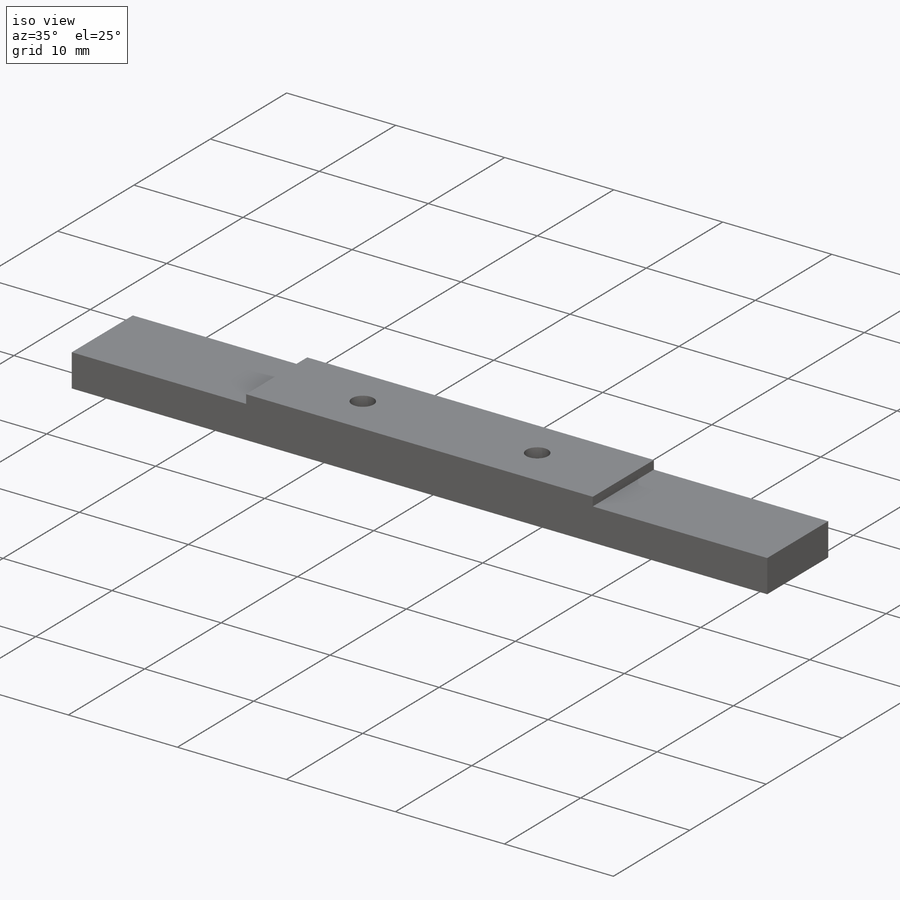
[diagram: iso view]
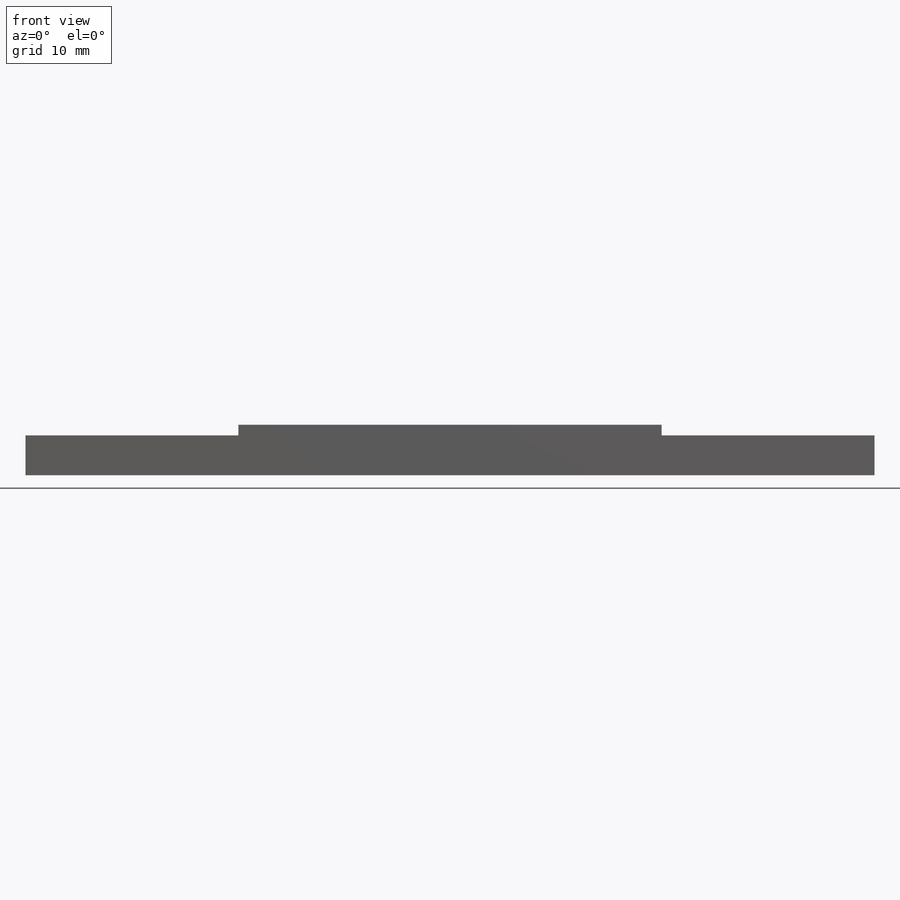
[diagram: front view]
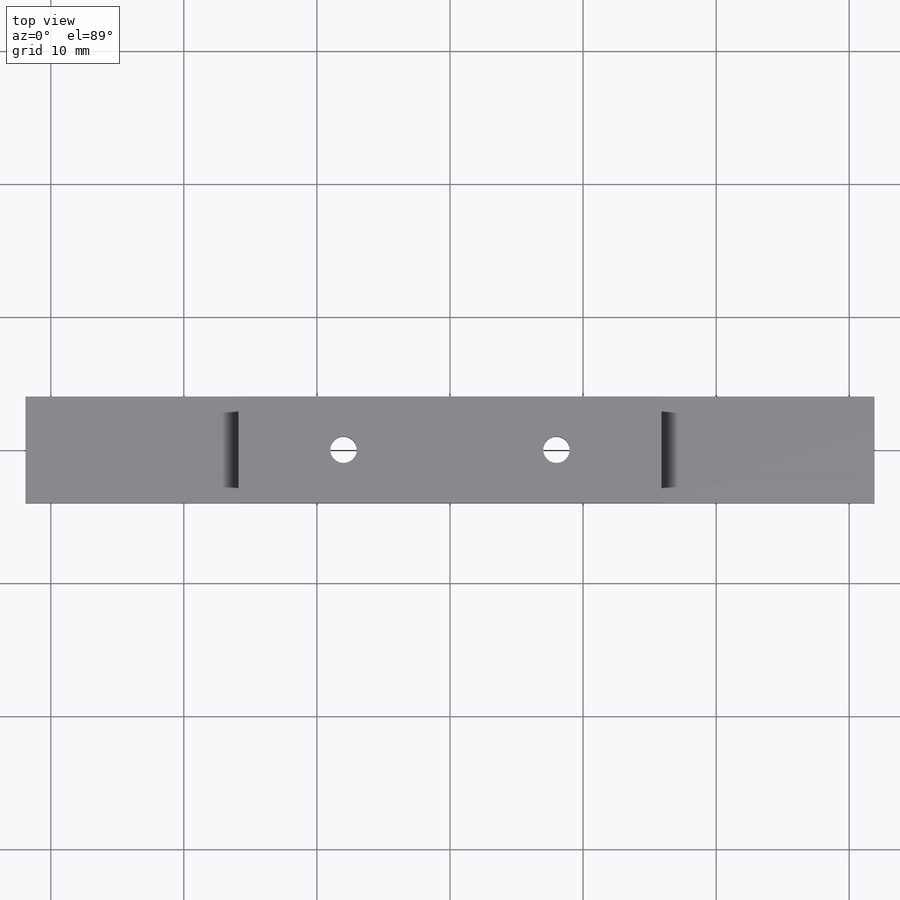
[diagram: top view]
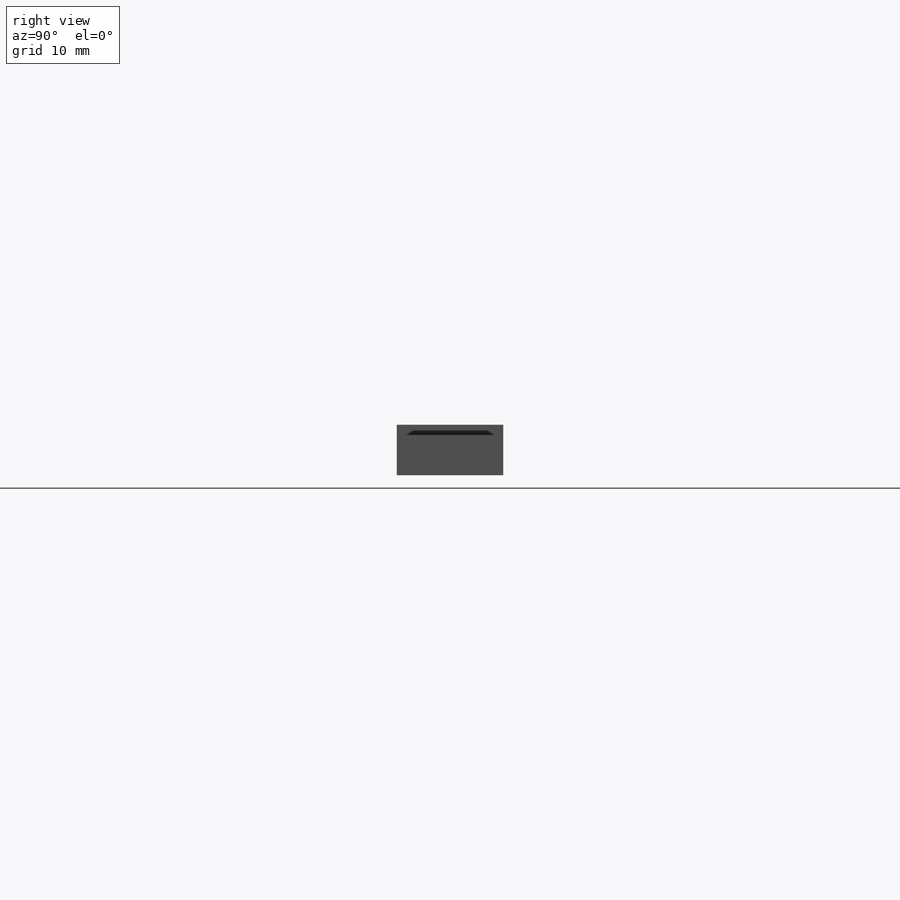
[diagram: right view]
SOLIDWORKS PART (.sldprt)
format: sldprt  version: not decoded by parser v0  size: 157,696 bytes
history: native  units: mm
features: plane x3, sketch x3, material x1, extrude x1, hole x1 (+9 scaffold rows collapsed)
feature tree (18):
  scaffold x9  (default folders/planes/origin — collapsed)
  material  "3.1325 (EN-AW 2017A)"
  plane  "Ebene vorne"
  plane  "Ebene oben"
  plane  "Ebene rechts"
  sketch  "Skizze1"  dims[D1=0.8mm D2=31.8mm D3=63.8mm D4=3.0mm]
  extrude  "Aufsatz-Linear austragen1"  Depth=8mm
  hole  "Formsenkung für M3 Senkschraube mit Innensechskant1"  Diameter=2mm Depth=3.8mm
  sketch  "Skizze3"  dims[D1=8.0mm]
  sketch  "Skizze2"  dims[hole-wizard template sketch: 55 standard entries collapsed; hole parameters kept: c17.Bohrungstiefe=3.8mm c17.Senkdurchmesser (Oben)=3.5mm c17.D4=~3.666174mm c17.Senkwinkel (Oben)=90.0deg]
decode coverage: 5 of 5 modeling features carry decoded parameters
note: ~ marks probable driven/reference dimensions
note: suppression state not decoded; provenance and decode notes live in map.json
